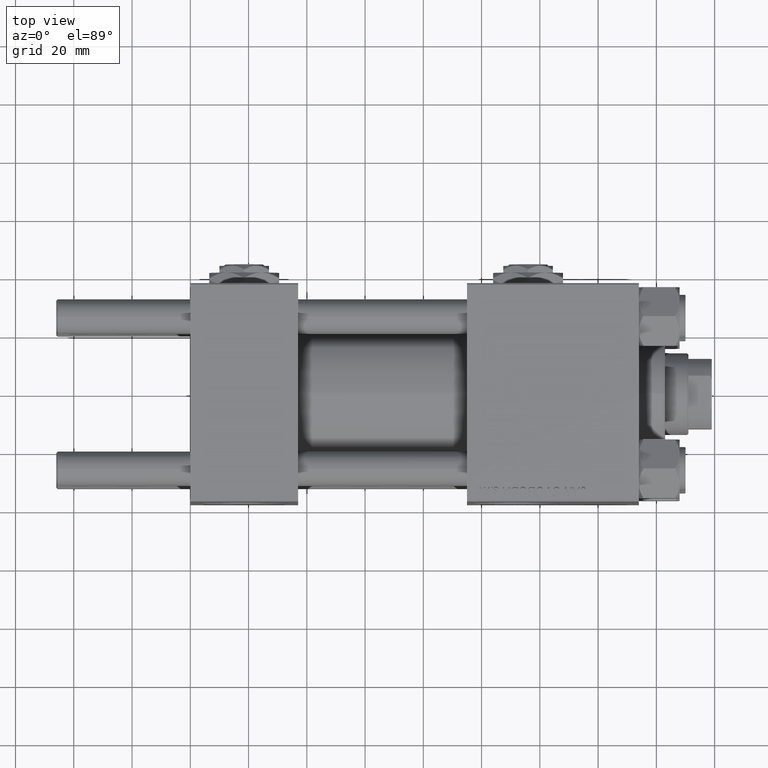
[diagram: clean part render]
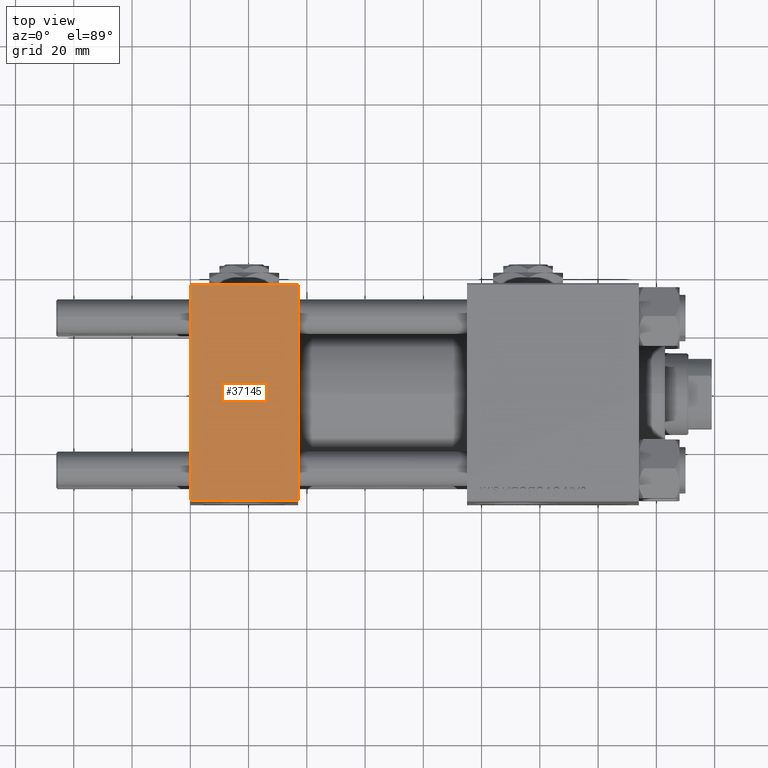
[diagram: same view with one face highlighted and labeled with its STEP entity id]
A machine part, top view. The second image highlights one B-rep face of the part: STEP entity #37145.
In plain terms, the highlighted planar face has unit normal (0, 0, -1).
Its self-contained STEP definition (entity closure, byte-faithful):
#1512 = CARTESIAN_POINT ( 'NONE',  ( 37.00000000000000000, 37.49999999999999289, 37.50000000000000000 ) ) ;
#2780 = VECTOR ( 'NONE', #27828, 1000.000000000000000 ) ;
#3185 = DIRECTION ( 'NONE',  ( -1.000000000000000000, 0.000000000000000000, 0.000000000000000000 ) ) ;
#3756 = ORIENTED_EDGE ( 'NONE', *, *, #14701, .T. ) ;
#4665 = CARTESIAN_POINT ( 'NONE',  ( 37.00000000000000000, 37.49999999999999289, 37.50000000000000000 ) ) ;
#4923 = ORIENTED_EDGE ( 'NONE', *, *, #9214, .T. ) ;
#6780 = CARTESIAN_POINT ( 'NONE',  ( 37.00000000000000000, 36.99999999999999289, 37.50000000000000000 ) ) ;
#6868 = CARTESIAN_POINT ( 'NONE',  ( 0.000000000000000000, 36.99999999999999289, 37.50000000000000000 ) ) ;
#7125 = LINE ( 'NONE', #43596, #39864 ) ;
#8136 = CARTESIAN_POINT ( 'NONE',  ( 37.00000000000000000, -37.00000000000000711, 37.49999999999999289 ) ) ;
#9190 = VERTEX_POINT ( 'NONE', #8136 ) ;
#9214 = EDGE_CURVE ( 'NONE', #23442, #11247, #40409, .T. ) ;
#11247 = VERTEX_POINT ( 'NONE', #39325 ) ;
#11493 = EDGE_CURVE ( 'NONE', #11247, #9190, #24868, .T. ) ;
#14701 = EDGE_CURVE ( 'NONE', #17283, #23442, #7125, .T. ) ;
#16752 = DIRECTION ( 'NONE',  ( 0.000000000000000000, 1.000000000000000000, 9.251858538542971581E-17 ) ) ;
#16980 = ORIENTED_EDGE ( 'NONE', *, *, #21426, .F. ) ;
#17283 = VERTEX_POINT ( 'NONE', #6780 ) ;
#19650 = FACE_OUTER_BOUND ( 'NONE', #50859, .T. ) ;
#21426 = EDGE_CURVE ( 'NONE', #17283, #9190, #43788, .T. ) ;
#21954 = DIRECTION ( 'NONE',  ( 1.000000000000000000, 0.000000000000000000, 0.000000000000000000 ) ) ;
#23442 = VERTEX_POINT ( 'NONE', #6868 ) ;
#24868 = LINE ( 'NONE', #45322, #30593 ) ;
#27459 = ORIENTED_EDGE ( 'NONE', *, *, #11493, .T. ) ;
#27828 = DIRECTION ( 'NONE',  ( 0.000000000000000000, -1.000000000000000000, -9.251858538542971581E-17 ) ) ;
#30593 = VECTOR ( 'NONE', #21954, 1000.000000000000000 ) ;
#34234 = PLANE ( 'NONE',  #51534 ) ;
#35434 = CARTESIAN_POINT ( 'NONE',  ( 0.000000000000000000, 37.49999999999999289, 37.50000000000000000 ) ) ;
#37145 = ADVANCED_FACE ( 'NONE', ( #19650 ), #34234, .F. ) ;
#37723 = DIRECTION ( 'NONE',  ( 0.000000000000000000, -1.000000000000000000, -9.251858538542971581E-17 ) ) ;
#39325 = CARTESIAN_POINT ( 'NONE',  ( 0.000000000000000000, -37.00000000000000711, 37.49999999999999289 ) ) ;
#39864 = VECTOR ( 'NONE', #3185, 1000.000000000000000 ) ;
#40409 = LINE ( 'NONE', #35434, #2780 ) ;
#43596 = CARTESIAN_POINT ( 'NONE',  ( 0.000000000000000000, 36.99999999999999289, 37.50000000000000000 ) ) ;
#43788 = LINE ( 'NONE', #1512, #45027 ) ;
#45027 = VECTOR ( 'NONE', #37723, 1000.000000000000000 ) ;
#45322 = CARTESIAN_POINT ( 'NONE',  ( 37.00000000000000000, -37.00000000000000711, 37.49999999999999289 ) ) ;
#48741 = DIRECTION ( 'NONE',  ( 0.000000000000000000, 9.251858538542971581E-17, -1.000000000000000000 ) ) ;
#50859 = EDGE_LOOP ( 'NONE', ( #4923, #27459, #16980, #3756 ) ) ;
#51534 = AXIS2_PLACEMENT_3D ( 'NONE', #4665, #48741, #16752 ) ;